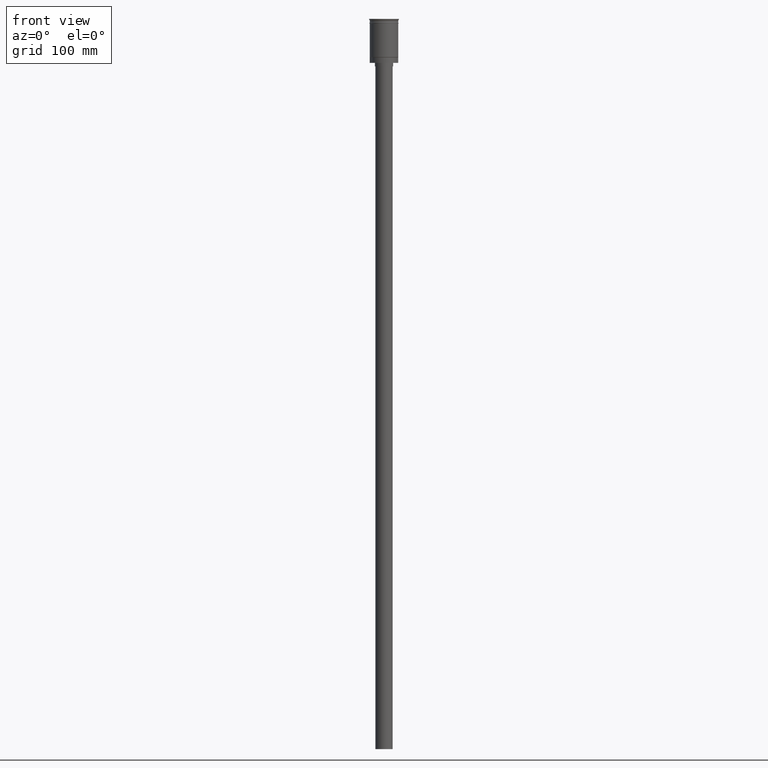
[diagram: clean part render]
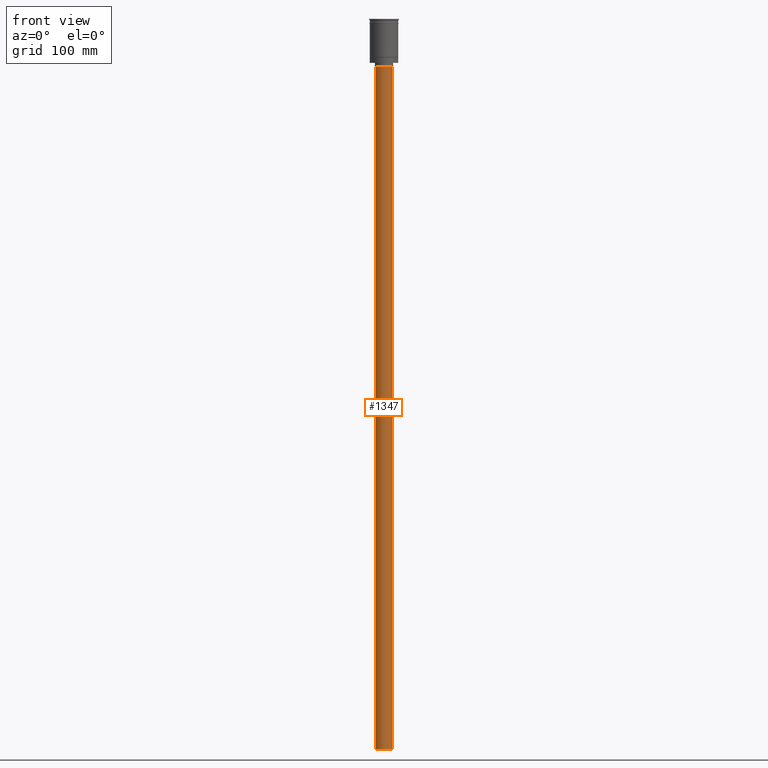
[diagram: same view with one face highlighted and labeled with its STEP entity id]
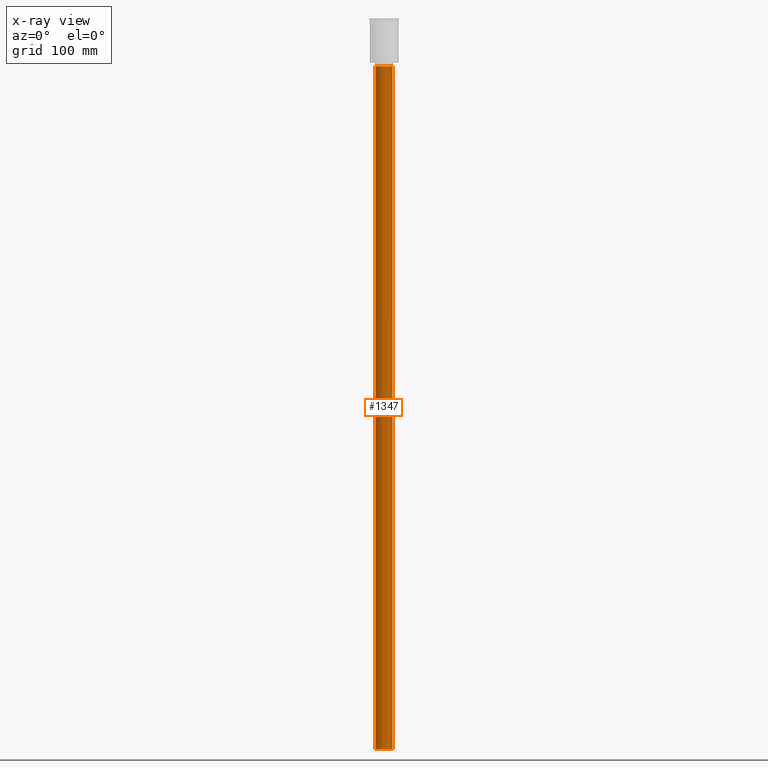
[diagram: x-ray of the same camera — body ghosted, the highlighted face saturated]
A machine part, front view. The second image highlights one B-rep face of the part: STEP entity #1347.
The next image is the same camera in x-ray: the body ghosted, the highlighted face saturated — about 0% of this face is hidden behind the body in this view.
In plain terms, the highlighted cylindrical surface (edge-blend (fillet) strip) has radius 7.5 mm, axis along (-0, -0, 1).
Its self-contained STEP definition (entity closure, byte-faithful):
#1 = AXIS2_PLACEMENT_3D ( 'NONE', #294, #1269, #1241 ) ;
#17 = CARTESIAN_POINT ( 'NONE',  ( 7.500000000000000000, 0.000000000000000000, -638.5000000000000000 ) ) ;
#39 = CARTESIAN_POINT ( 'NONE',  ( 7.500000000000000000, 0.000000000000000000, -638.5000000000000000 ) ) ;
#62 = CARTESIAN_POINT ( 'NONE',  ( 0.000000000000000000, 0.000000000000000000, -638.5000000000000000 ) ) ;
#115 = ORIENTED_EDGE ( 'NONE', *, *, #1362, .F. ) ;
#180 = AXIS2_PLACEMENT_3D ( 'NONE', #62, #1273, #640 ) ;
#195 = DIRECTION ( 'NONE',  ( -0.000000000000000000, -0.000000000000000000, 1.000000000000000000 ) ) ;
#199 = EDGE_CURVE ( 'NONE', #992, #307, #1266, .T. ) ;
#205 = VECTOR ( 'NONE', #195, 1000.000000000000000 ) ;
#278 = AXIS2_PLACEMENT_3D ( 'NONE', #967, #353, #1218 ) ;
#294 = CARTESIAN_POINT ( 'NONE',  ( 0.000000000000000000, 0.000000000000000000, -41.50000000000000000 ) ) ;
#307 = VERTEX_POINT ( 'NONE', #1193 ) ;
#353 = DIRECTION ( 'NONE',  ( 0.000000000000000000, 0.000000000000000000, -1.000000000000000000 ) ) ;
#394 = CARTESIAN_POINT ( 'NONE',  ( -7.500000000000000000, 9.184850993605147944E-16, -638.5000000000000000 ) ) ;
#518 = CARTESIAN_POINT ( 'NONE',  ( -7.500000000000000000, 9.184850993605147944E-16, -638.5000000000000000 ) ) ;
#631 = CIRCLE ( 'NONE', #278, 7.500000000000000000 ) ;
#640 = DIRECTION ( 'NONE',  ( 1.000000000000000000, 0.000000000000000000, 0.000000000000000000 ) ) ;
#764 = EDGE_LOOP ( 'NONE', ( #115, #920, #784, #1165 ) ) ;
#784 = ORIENTED_EDGE ( 'NONE', *, *, #1560, .T. ) ;
#796 = LINE ( 'NONE', #518, #205 ) ;
#834 = VERTEX_POINT ( 'NONE', #39 ) ;
#907 = CYLINDRICAL_SURFACE ( 'NONE', #180, 7.500000000000000000 ) ;
#920 = ORIENTED_EDGE ( 'NONE', *, *, #1074, .F. ) ;
#967 = CARTESIAN_POINT ( 'NONE',  ( 0.000000000000000000, 0.000000000000000000, -638.5000000000000000 ) ) ;
#992 = VERTEX_POINT ( 'NONE', #1465 ) ;
#1074 = EDGE_CURVE ( 'NONE', #834, #1231, #631, .T. ) ;
#1105 = LINE ( 'NONE', #17, #1341 ) ;
#1165 = ORIENTED_EDGE ( 'NONE', *, *, #199, .T. ) ;
#1170 = FACE_OUTER_BOUND ( 'NONE', #764, .T. ) ;
#1193 = CARTESIAN_POINT ( 'NONE',  ( -7.500000000000000000, 9.184850993605147944E-16, -41.50000000000000000 ) ) ;
#1218 = DIRECTION ( 'NONE',  ( -1.000000000000000000, 0.000000000000000000, 0.000000000000000000 ) ) ;
#1231 = VERTEX_POINT ( 'NONE', #394 ) ;
#1241 = DIRECTION ( 'NONE',  ( -1.000000000000000000, 0.000000000000000000, 0.000000000000000000 ) ) ;
#1266 = CIRCLE ( 'NONE', #1, 7.500000000000000000 ) ;
#1269 = DIRECTION ( 'NONE',  ( 0.000000000000000000, 0.000000000000000000, -1.000000000000000000 ) ) ;
#1273 = DIRECTION ( 'NONE',  ( -0.000000000000000000, -0.000000000000000000, 1.000000000000000000 ) ) ;
#1341 = VECTOR ( 'NONE', #1358, 1000.000000000000000 ) ;
#1347 = ADVANCED_FACE ( 'NONE', ( #1170 ), #907, .T. ) ;
#1358 = DIRECTION ( 'NONE',  ( -0.000000000000000000, -0.000000000000000000, 1.000000000000000000 ) ) ;
#1362 = EDGE_CURVE ( 'NONE', #1231, #307, #796, .T. ) ;
#1465 = CARTESIAN_POINT ( 'NONE',  ( 7.500000000000000000, 0.000000000000000000, -41.50000000000000000 ) ) ;
#1560 = EDGE_CURVE ( 'NONE', #834, #992, #1105, .T. ) ;